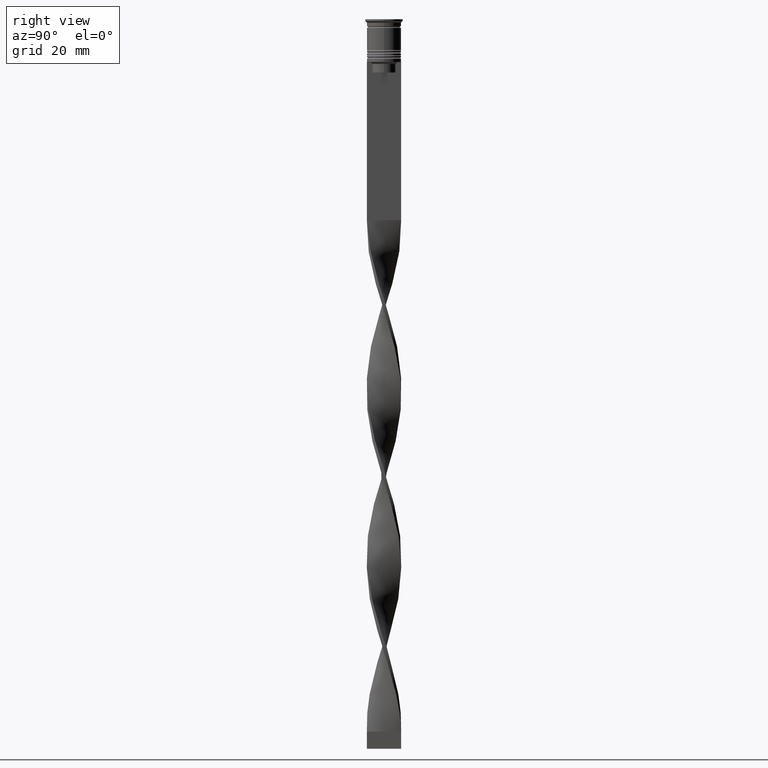
[diagram: clean part render]
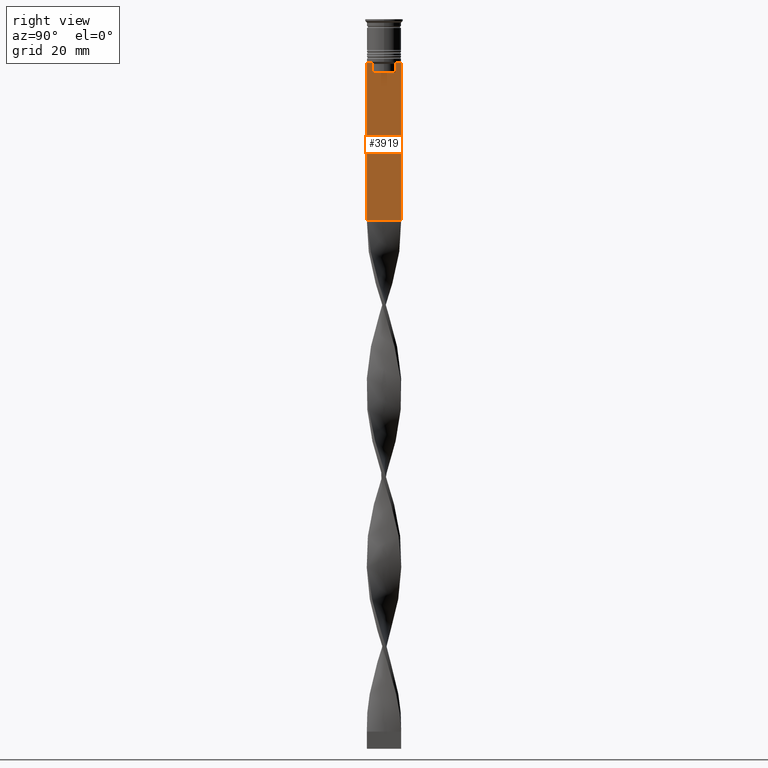
[diagram: same view with one face highlighted and labeled with its STEP entity id]
A machine part, right view. The second image highlights one B-rep face of the part: STEP entity #3919.
In plain terms, the highlighted planar face has unit normal (-1, 0, 0).
Its self-contained STEP definition (entity closure, byte-faithful):
#20 = B_SPLINE_CURVE_WITH_KNOTS ( 'NONE', 3,
 ( #3558, #3259, #2607, #729 ),
 .UNSPECIFIED., .F., .F.,
 ( 4, 4 ),
 ( 0.01632394437298965648, 0.01703543518243618576 ),
 .UNSPECIFIED. ) ;
#26 = VECTOR ( 'NONE', #2841, 1000.000000000000000 ) ;
#39 = B_SPLINE_CURVE_WITH_KNOTS ( 'NONE', 3,
 ( #3473, #3108, #425, #1587 ),
 .UNSPECIFIED., .F., .F.,
 ( 4, 4 ),
 ( 0.006644825462451552783, 0.007355321358912435097 ),
 .UNSPECIFIED. ) ;
#138 = CARTESIAN_POINT ( 'NONE',  ( 0.5000000000000000000, -4.999999999999999112, -12.50000000000000000 ) ) ;
#153 = EDGE_CURVE ( 'NONE', #1878, #2565, #367, .T. ) ;
#183 = ORIENTED_EDGE ( 'NONE', *, *, #354, .T. ) ;
#217 = LINE ( 'NONE', #3858, #1851 ) ;
#310 = CARTESIAN_POINT ( 'NONE',  ( 0.5000000000000000000, 4.874423042781575788, -12.50000000000000000 ) ) ;
#354 = EDGE_CURVE ( 'NONE', #2565, #764, #1888, .T. ) ;
#367 = LINE ( 'NONE', #959, #26 ) ;
#425 = CARTESIAN_POINT ( 'NONE',  ( 0.5000000000000000000, 3.531412678228260216, -12.83345231756357840 ) ) ;
#438 = PLANE ( 'NONE',  #575 ) ;
#455 = EDGE_CURVE ( 'NONE', #1115, #1552, #2330, .T. ) ;
#543 = CARTESIAN_POINT ( 'NONE',  ( 0.5000000000000000000, 3.867815921162742754, -12.50000000000000000 ) ) ;
#575 = AXIS2_PLACEMENT_3D ( 'NONE', #713, #1935, #3161 ) ;
#580 = EDGE_CURVE ( 'NONE', #3258, #2630, #1417, .T. ) ;
#655 = EDGE_CURVE ( 'NONE', #1552, #3513, #20, .T. ) ;
#713 = CARTESIAN_POINT ( 'NONE',  ( 0.5000000000000000000, -4.999999999999999112, -2.450124378879110054 ) ) ;
#729 = CARTESIAN_POINT ( 'NONE',  ( 0.5000000000000000000, -3.867815921162742754, -12.50000000000000000 ) ) ;
#764 = VERTEX_POINT ( 'NONE', #1325 ) ;
#773 = ORIENTED_EDGE ( 'NONE', *, *, #3369, .F. ) ;
#794 = LINE ( 'NONE', #2348, #2114 ) ;
#959 = CARTESIAN_POINT ( 'NONE',  ( 0.5000000000000000000, -4.999999999999999112, -2.450124378879110054 ) ) ;
#1043 = ORIENTED_EDGE ( 'NONE', *, *, #1968, .T. ) ;
#1071 = ORIENTED_EDGE ( 'NONE', *, *, #3971, .T. ) ;
#1078 = DIRECTION ( 'NONE',  ( 0.000000000000000000, -1.000000000000000000, 0.000000000000000000 ) ) ;
#1084 = DIRECTION ( 'NONE',  ( 0.000000000000000000, 0.000000000000000000, -1.000000000000000000 ) ) ;
#1087 = CARTESIAN_POINT ( 'NONE',  ( 0.5000000000000000000, -4.999999999999999112, -12.50000000000000000 ) ) ;
#1115 = VERTEX_POINT ( 'NONE', #1498 ) ;
#1119 = CARTESIAN_POINT ( 'NONE',  ( 0.5000000000000000000, -4.999999999999999112, -12.50000000000000000 ) ) ;
#1207 = CARTESIAN_POINT ( 'NONE',  ( 0.5000000000000000000, 3.363034344160045652, -15.50000000000000000 ) ) ;
#1238 = CARTESIAN_POINT ( 'NONE',  ( 0.5000000000000000000, 5.000000000000000888, -12.50000000000000000 ) ) ;
#1296 = EDGE_LOOP ( 'NONE', ( #1043, #3081, #3261, #2324, #2007, #1663, #1071, #2282, #3277, #183, #773, #3361 ) ) ;
#1317 = VERTEX_POINT ( 'NONE', #3033 ) ;
#1325 = CARTESIAN_POINT ( 'NONE',  ( 0.5000000000000000000, 5.000000000000000888, -58.50000000000000000 ) ) ;
#1329 = DIRECTION ( 'NONE',  ( 0.000000000000000000, 1.000000000000000000, 0.000000000000000000 ) ) ;
#1380 = DIRECTION ( 'NONE',  ( 0.000000000000000000, 0.000000000000000000, -1.000000000000000000 ) ) ;
#1417 = LINE ( 'NONE', #1119, #2649 ) ;
#1482 = EDGE_CURVE ( 'NONE', #3083, #3139, #39, .T. ) ;
#1498 = CARTESIAN_POINT ( 'NONE',  ( 0.5000000000000000000, -3.363034344160045652, -15.50000000000000000 ) ) ;
#1552 = VERTEX_POINT ( 'NONE', #3783 ) ;
#1587 = CARTESIAN_POINT ( 'NONE',  ( 0.5000000000000000000, 3.363034344160045208, -13.00000000000000178 ) ) ;
#1663 = ORIENTED_EDGE ( 'NONE', *, *, #655, .T. ) ;
#1753 = VERTEX_POINT ( 'NONE', #1207 ) ;
#1774 = EDGE_CURVE ( 'NONE', #1317, #1878, #3372, .T. ) ;
#1851 = VECTOR ( 'NONE', #1084, 1000.000000000000000 ) ;
#1878 = VERTEX_POINT ( 'NONE', #138 ) ;
#1888 = LINE ( 'NONE', #3113, #2782 ) ;
#1935 = DIRECTION ( 'NONE',  ( -1.000000000000000000, 0.000000000000000000, 0.000000000000000000 ) ) ;
#1943 = EDGE_CURVE ( 'NONE', #3139, #1753, #1983, .T. ) ;
#1968 = EDGE_CURVE ( 'NONE', #2630, #3083, #3837, .T. ) ;
#1983 = LINE ( 'NONE', #3208, #2980 ) ;
#2007 = ORIENTED_EDGE ( 'NONE', *, *, #455, .T. ) ;
#2114 = VECTOR ( 'NONE', #1078, 1000.000000000000000 ) ;
#2281 = LINE ( 'NONE', #2659, #3581 ) ;
#2282 = ORIENTED_EDGE ( 'NONE', *, *, #1774, .T. ) ;
#2299 = DIRECTION ( 'NONE',  ( 0.000000000000000000, -1.000000000000000000, 0.000000000000000000 ) ) ;
#2324 = ORIENTED_EDGE ( 'NONE', *, *, #3056, .T. ) ;
#2330 = LINE ( 'NONE', #2938, #2393 ) ;
#2335 = CARTESIAN_POINT ( 'NONE',  ( 0.5000000000000000000, -3.867815921162742754, -12.50000000000000000 ) ) ;
#2348 = CARTESIAN_POINT ( 'NONE',  ( 0.5000000000000000000, -4.999999999999999112, -12.50000000000000000 ) ) ;
#2393 = VECTOR ( 'NONE', #3524, 1000.000000000000000 ) ;
#2565 = VERTEX_POINT ( 'NONE', #3291 ) ;
#2607 = CARTESIAN_POINT ( 'NONE',  ( 0.5000000000000000000, -3.699658232838647365, -12.66676999593996555 ) ) ;
#2630 = VERTEX_POINT ( 'NONE', #310 ) ;
#2649 = VECTOR ( 'NONE', #3564, 1000.000000000000000 ) ;
#2657 = VECTOR ( 'NONE', #3188, 1000.000000000000000 ) ;
#2659 = CARTESIAN_POINT ( 'NONE',  ( 0.5000000000000000000, 3.399999999999998135, -15.50000000000000000 ) ) ;
#2782 = VECTOR ( 'NONE', #1329, 1000.000000000000000 ) ;
#2841 = DIRECTION ( 'NONE',  ( 0.000000000000000000, 0.000000000000000000, -1.000000000000000000 ) ) ;
#2920 = CARTESIAN_POINT ( 'NONE',  ( 0.5000000000000000000, 3.363034344160045208, -13.00000000000000178 ) ) ;
#2938 = CARTESIAN_POINT ( 'NONE',  ( 0.5000000000000000000, -3.363034344160045208, 0.000000000000000000 ) ) ;
#2980 = VECTOR ( 'NONE', #1380, 1000.000000000000000 ) ;
#3033 = CARTESIAN_POINT ( 'NONE',  ( 0.5000000000000000000, -4.874423042781575788, -12.50000000000000000 ) ) ;
#3056 = EDGE_CURVE ( 'NONE', #1753, #1115, #2281, .T. ) ;
#3081 = ORIENTED_EDGE ( 'NONE', *, *, #1482, .T. ) ;
#3083 = VERTEX_POINT ( 'NONE', #543 ) ;
#3108 = CARTESIAN_POINT ( 'NONE',  ( 0.5000000000000000000, 3.699657965831574913, -12.66677026074361301 ) ) ;
#3113 = CARTESIAN_POINT ( 'NONE',  ( 0.5000000000000000000, -4.999999999999999112, -58.50000000000000000 ) ) ;
#3139 = VERTEX_POINT ( 'NONE', #2920 ) ;
#3161 = DIRECTION ( 'NONE',  ( 0.000000000000000000, 0.000000000000000000, 1.000000000000000000 ) ) ;
#3188 = DIRECTION ( 'NONE',  ( 0.000000000000000000, -1.000000000000000000, 0.000000000000000000 ) ) ;
#3208 = CARTESIAN_POINT ( 'NONE',  ( 0.5000000000000000000, 3.363034344160045208, 0.000000000000000000 ) ) ;
#3258 = VERTEX_POINT ( 'NONE', #1238 ) ;
#3259 = CARTESIAN_POINT ( 'NONE',  ( 0.5000000000000000000, -3.531412985305424801, -12.83345201382502765 ) ) ;
#3261 = ORIENTED_EDGE ( 'NONE', *, *, #1943, .T. ) ;
#3270 = DIRECTION ( 'NONE',  ( 0.000000000000000000, -1.000000000000000000, 0.000000000000000000 ) ) ;
#3277 = ORIENTED_EDGE ( 'NONE', *, *, #153, .T. ) ;
#3291 = CARTESIAN_POINT ( 'NONE',  ( 0.5000000000000000000, -4.999999999999999112, -58.50000000000000000 ) ) ;
#3361 = ORIENTED_EDGE ( 'NONE', *, *, #580, .T. ) ;
#3369 = EDGE_CURVE ( 'NONE', #3258, #764, #217, .T. ) ;
#3372 = LINE ( 'NONE', #3900, #2657 ) ;
#3465 = FACE_OUTER_BOUND ( 'NONE', #1296, .T. ) ;
#3473 = CARTESIAN_POINT ( 'NONE',  ( 0.5000000000000000000, 3.867815921162742754, -12.50000000000000000 ) ) ;
#3503 = VECTOR ( 'NONE', #2299, 1000.000000000000000 ) ;
#3513 = VERTEX_POINT ( 'NONE', #2335 ) ;
#3524 = DIRECTION ( 'NONE',  ( -0.000000000000000000, -0.000000000000000000, 1.000000000000000000 ) ) ;
#3558 = CARTESIAN_POINT ( 'NONE',  ( 0.5000000000000000000, -3.363034344160045208, -13.00000000000000178 ) ) ;
#3564 = DIRECTION ( 'NONE',  ( 0.000000000000000000, -1.000000000000000000, 0.000000000000000000 ) ) ;
#3581 = VECTOR ( 'NONE', #3270, 1000.000000000000000 ) ;
#3783 = CARTESIAN_POINT ( 'NONE',  ( 0.5000000000000000000, -3.363034344160045208, -13.00000000000000178 ) ) ;
#3837 = LINE ( 'NONE', #1087, #3503 ) ;
#3858 = CARTESIAN_POINT ( 'NONE',  ( 0.5000000000000000000, 5.000000000000000888, -2.450124378879110054 ) ) ;
#3900 = CARTESIAN_POINT ( 'NONE',  ( 0.5000000000000000000, -4.999999999999999112, -12.50000000000000000 ) ) ;
#3919 = ADVANCED_FACE ( 'NONE', ( #3465 ), #438, .F. ) ;
#3971 = EDGE_CURVE ( 'NONE', #3513, #1317, #794, .T. ) ;